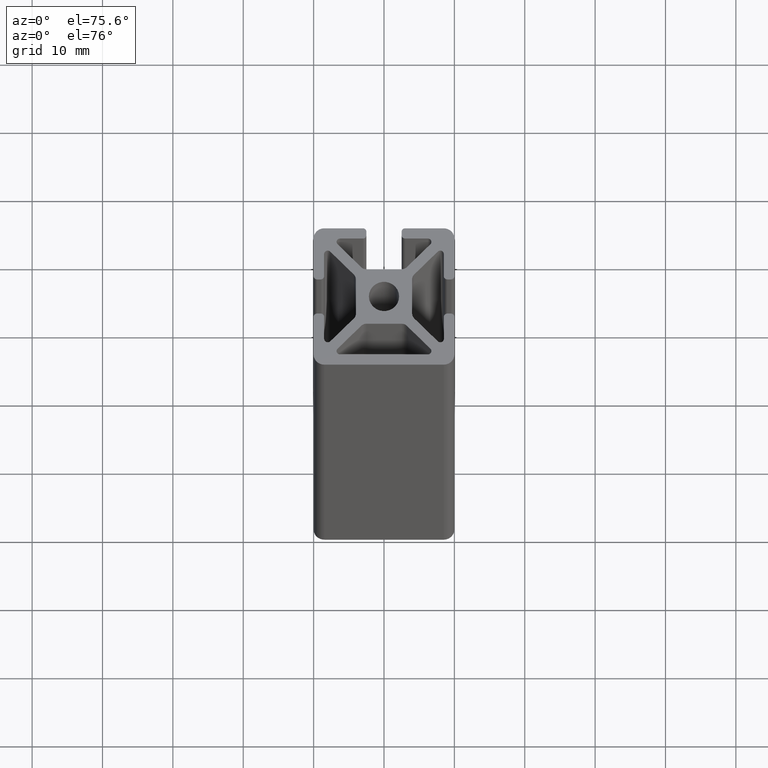
[diagram: clean part render]
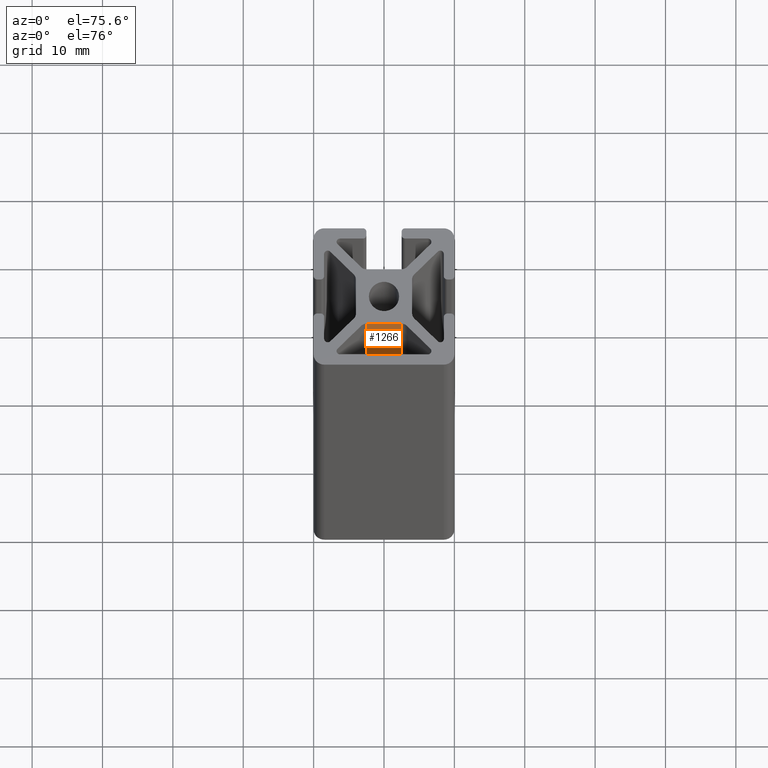
[diagram: same view with one face highlighted and labeled with its STEP entity id]
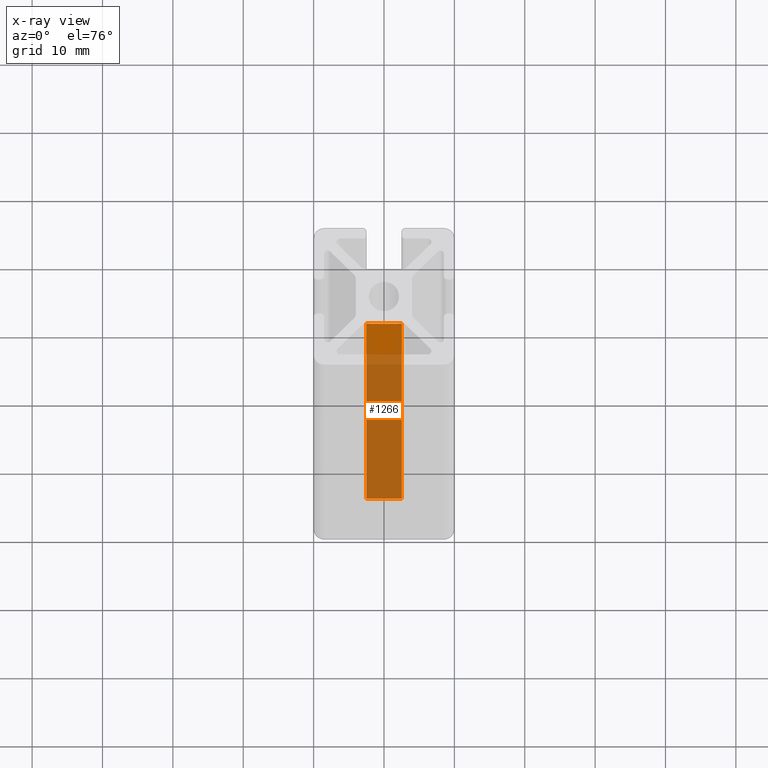
[diagram: x-ray of the same camera — body ghosted, the highlighted face saturated]
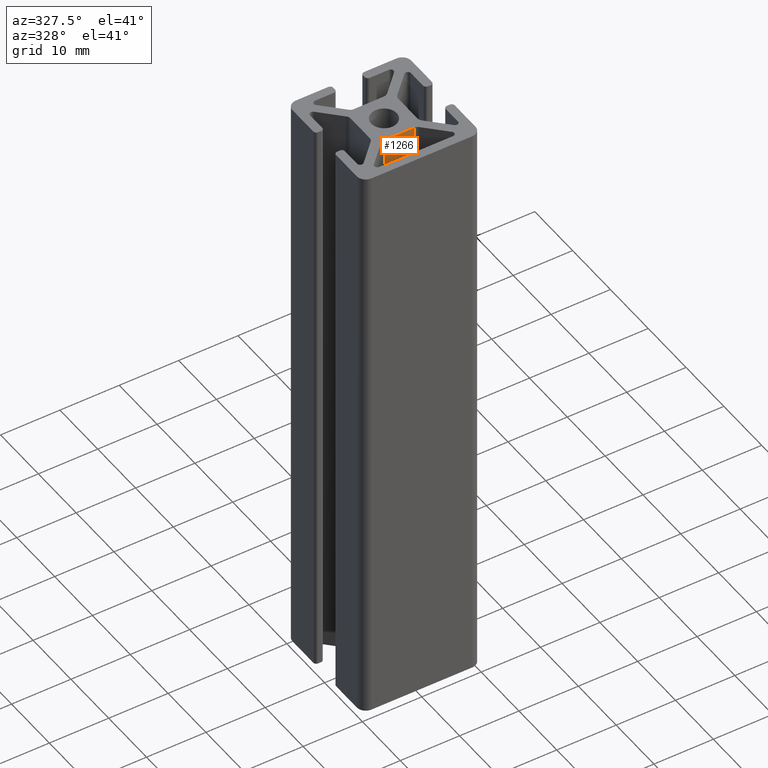
[diagram: same view with one face highlighted and labeled with its STEP entity id]
A machine part, auxiliary view. The second image highlights one B-rep face of the part: STEP entity #1266.
The next image is the same camera in x-ray: the body ghosted, the highlighted face saturated — about 83% of this face is hidden behind the body in this view.
A second angle (auxiliary view) of the same face is appended — the face is thin or edge-on in the first view.
In plain terms, the highlighted planar face has unit normal (0, 1, 0).
Its self-contained STEP definition (entity closure, byte-faithful):
#17=PLANE('',#1343);
#58=LINE('',#1896,#186);
#59=LINE('',#1899,#187);
#60=LINE('',#1901,#188);
#61=LINE('',#1902,#189);
#186=VECTOR('',#1501,100.);
#187=VECTOR('',#1504,5.05025253169417);
#188=VECTOR('',#1505,5.05025253169417);
#189=VECTOR('',#1506,100.);
#316=FACE_OUTER_BOUND('',#384,.T.);
#384=EDGE_LOOP('',(#861,#862,#863,#864));
#527=VERTEX_POINT('',#1892);
#528=VERTEX_POINT('',#1894);
#529=VERTEX_POINT('',#1898);
#530=VERTEX_POINT('',#1900);
#662=EDGE_CURVE('',#528,#527,#58,.T.);
#663=EDGE_CURVE('',#527,#529,#59,.T.);
#664=EDGE_CURVE('',#530,#528,#60,.T.);
#665=EDGE_CURVE('',#530,#529,#61,.T.);
#861=ORIENTED_EDGE('',*,*,#663,.F.);
#862=ORIENTED_EDGE('',*,*,#662,.F.);
#863=ORIENTED_EDGE('',*,*,#664,.F.);
#864=ORIENTED_EDGE('',*,*,#665,.T.);
#1266=ADVANCED_FACE('',(#316),#17,.F.);
#1343=AXIS2_PLACEMENT_3D('',#1897,#1502,#1503);
#1501=DIRECTION('',(0.,0.,1.));
#1502=DIRECTION('center_axis',(0.,1.,0.));
#1503=DIRECTION('ref_axis',(-1.,0.,0.));
#1504=DIRECTION('',(1.,0.,0.));
#1505=DIRECTION('',(-1.,0.,0.));
#1506=DIRECTION('',(0.,0.,1.));
#1892=CARTESIAN_POINT('',(-2.52512626584708,-4.,100.));
#1894=CARTESIAN_POINT('',(-2.52512626584708,-4.,0.));
#1896=CARTESIAN_POINT('',(-2.52512626584708,-4.,0.));
#1897=CARTESIAN_POINT('Origin',(2.52512626584708,-4.,0.));
#1898=CARTESIAN_POINT('',(2.52512626584708,-4.,100.));
#1899=CARTESIAN_POINT('',(1.26256313292354,-4.,100.));
#1900=CARTESIAN_POINT('',(2.52512626584708,-4.,0.));
#1901=CARTESIAN_POINT('',(1.26256313292354,-4.,0.));
#1902=CARTESIAN_POINT('',(2.52512626584708,-4.,0.));